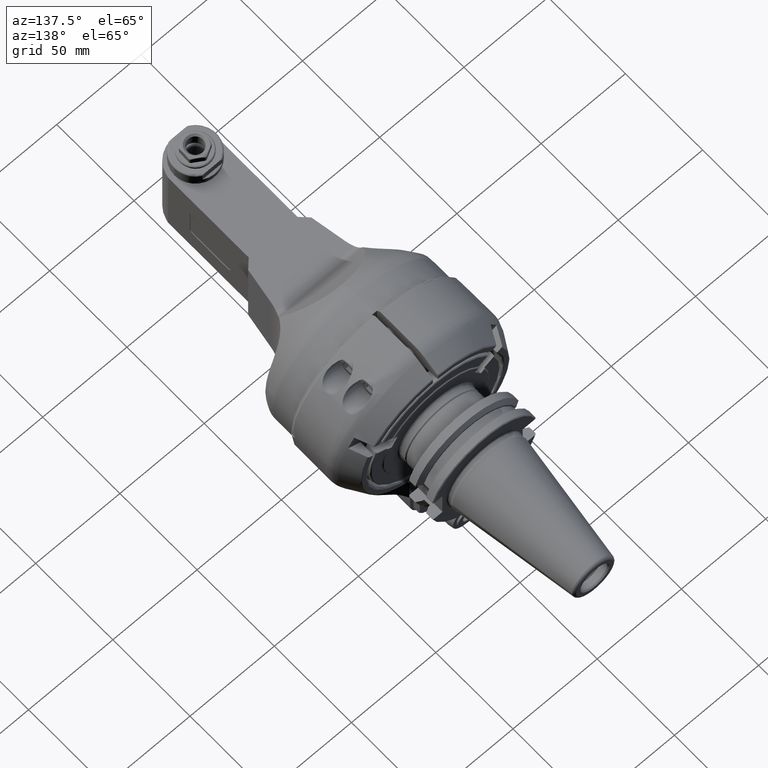
[diagram: clean part render]
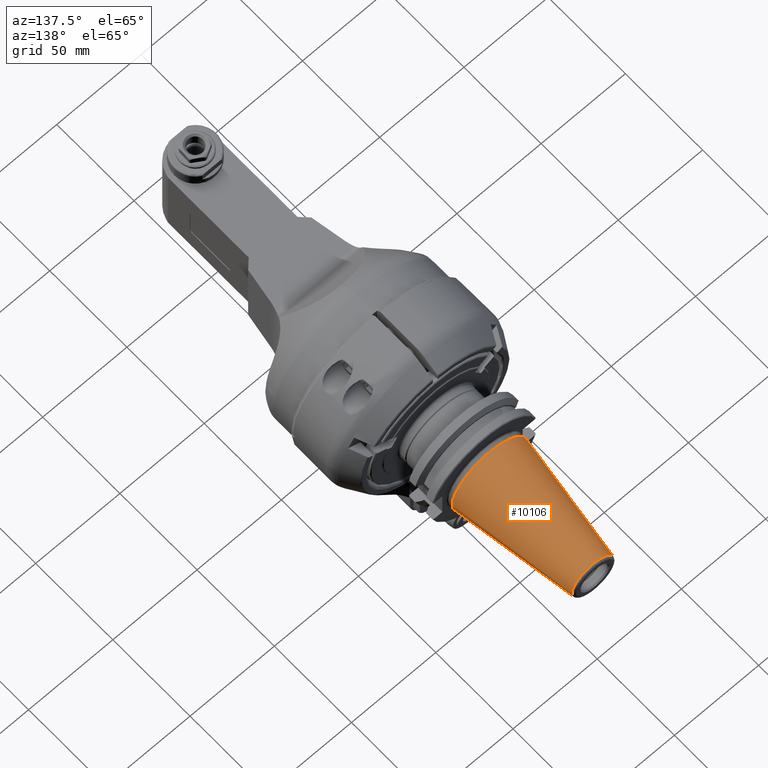
[diagram: same view with one face highlighted and labeled with its STEP entity id]
A machine part, auxiliary view. The second image highlights one B-rep face of the part: STEP entity #10106.
In plain terms, the highlighted conical surface has half-angle 8.297 deg.
Its self-contained STEP definition (entity closure, byte-faithful):
#213=CONICAL_SURFACE('',#11293,17.34203190906,0.144812411498922);
#1171=CIRCLE('',#11292,22.225);
#1172=CIRCLE('',#11294,12.45906381812);
#1173=CIRCLE('',#11295,12.45906381812);
#1774=FACE_OUTER_BOUND('',#2467,.T.);
#2467=EDGE_LOOP('',(#9011,#9012,#9013,#9014,#9015));
#3183=LINE('',#20465,#3883);
#3883=VECTOR('',#14192,17.34203190906);
#4822=VERTEX_POINT('',#20460);
#4823=VERTEX_POINT('',#20464);
#4824=VERTEX_POINT('',#20466);
#6235=EDGE_CURVE('',#4822,#4822,#1171,.T.);
#6237=EDGE_CURVE('',#4822,#4823,#3183,.T.);
#6238=EDGE_CURVE('',#4824,#4823,#1172,.T.);
#6239=EDGE_CURVE('',#4823,#4824,#1173,.T.);
#9011=ORIENTED_EDGE('',*,*,#6235,.F.);
#9012=ORIENTED_EDGE('',*,*,#6237,.T.);
#9013=ORIENTED_EDGE('',*,*,#6238,.F.);
#9014=ORIENTED_EDGE('',*,*,#6239,.F.);
#9015=ORIENTED_EDGE('',*,*,#6237,.F.);
#10106=ADVANCED_FACE('',(#1774),#213,.T.);
#11292=AXIS2_PLACEMENT_3D('',#20461,#14187,#14188);
#11293=AXIS2_PLACEMENT_3D('',#20463,#14190,#14191);
#11294=AXIS2_PLACEMENT_3D('',#20467,#14193,#14194);
#11295=AXIS2_PLACEMENT_3D('',#20468,#14195,#14196);
#14187=DIRECTION('center_axis',(0.,-1.,0.));
#14188=DIRECTION('ref_axis',(1.,0.,0.));
#14190=DIRECTION('center_axis',(0.,-1.,0.));
#14191=DIRECTION('ref_axis',(-1.,0.,0.));
#14192=DIRECTION('',(-0.144306807239621,0.98953299358046,-1.76724869581176E-17));
#14193=DIRECTION('center_axis',(0.,1.,0.));
#14194=DIRECTION('ref_axis',(1.,0.,0.));
#14195=DIRECTION('center_axis',(0.,1.,0.));
#14196=DIRECTION('ref_axis',(1.,0.,0.));
#20460=CARTESIAN_POINT('',(22.2249999999967,74.5000000000009,-2.72177751110459E-15));
#20461=CARTESIAN_POINT('Origin',(0.,74.5,0.));
#20463=CARTESIAN_POINT('Origin',(0.,107.9832301054,0.));
#20464=CARTESIAN_POINT('',(12.45906381812,141.4664602109,0.));
#20465=CARTESIAN_POINT('',(17.34203190906,107.9832301054,2.12378638681416E-15));
#20466=CARTESIAN_POINT('',(-12.45906381812,141.4664602109,-1.52579526252333E-15));
#20467=CARTESIAN_POINT('Origin',(0.,141.4664602109,0.));
#20468=CARTESIAN_POINT('Origin',(0.,141.4664602109,0.));